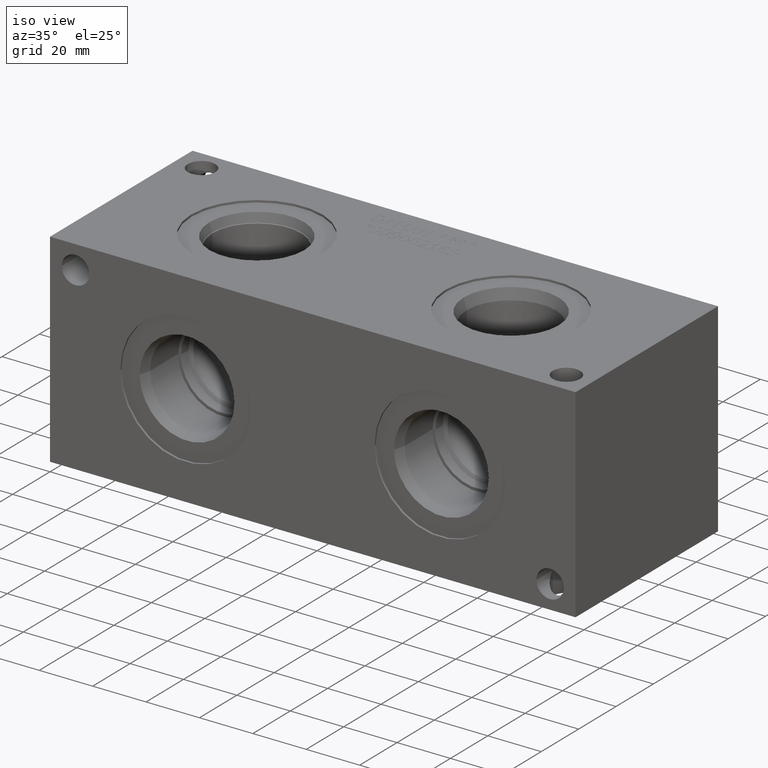
[diagram: clean part render]
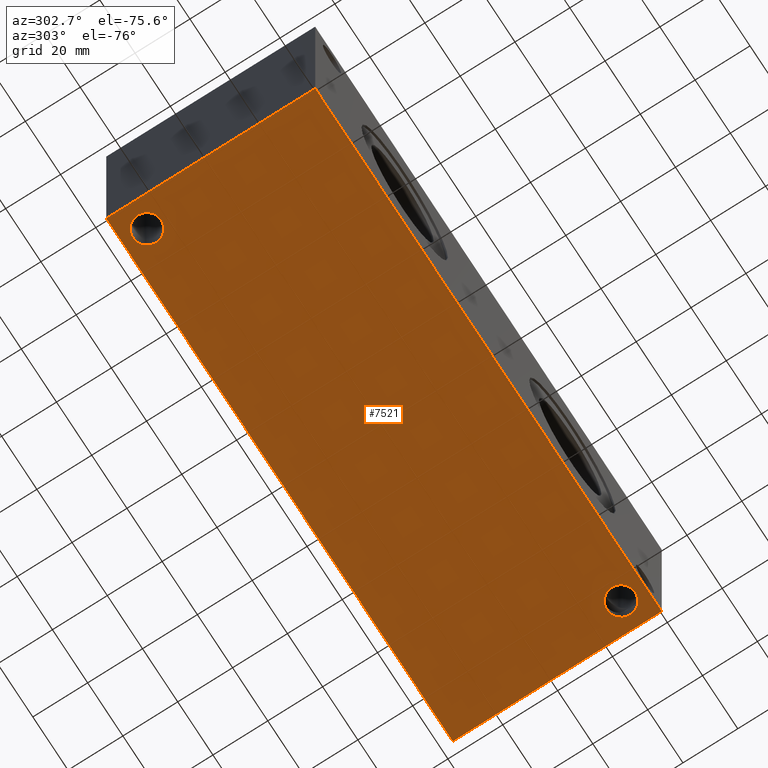
[diagram: tour spotlight — one face highlighted and labeled with its STEP entity id]
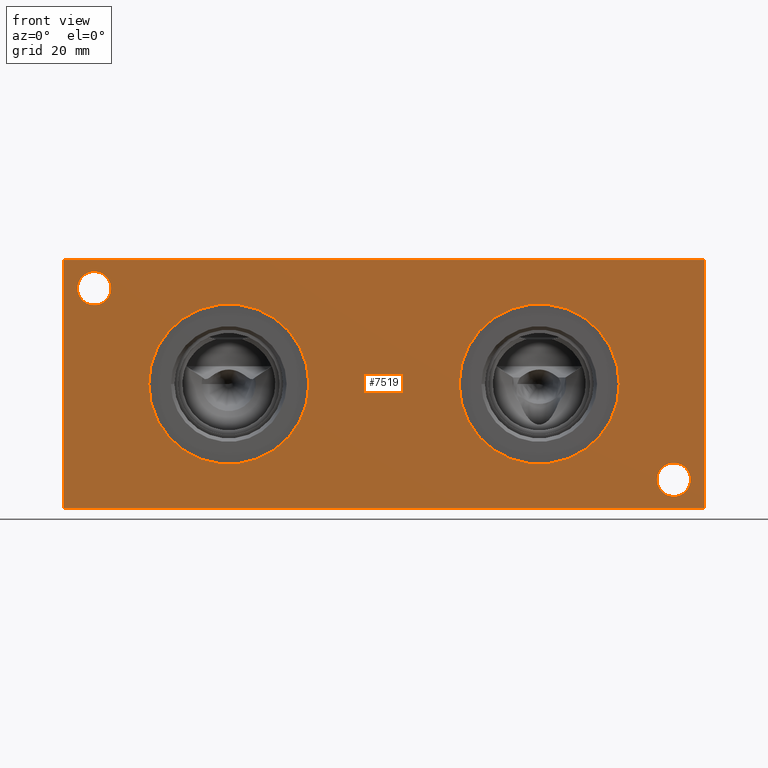
[diagram: tour spotlight — one face highlighted and labeled with its STEP entity id]
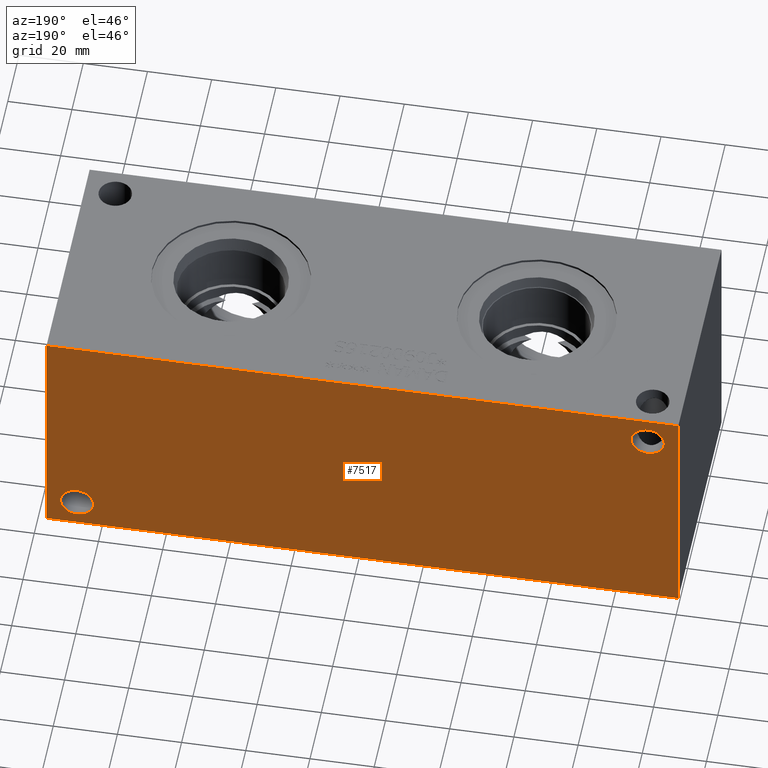
[diagram: tour spotlight — one face highlighted and labeled with its STEP entity id]
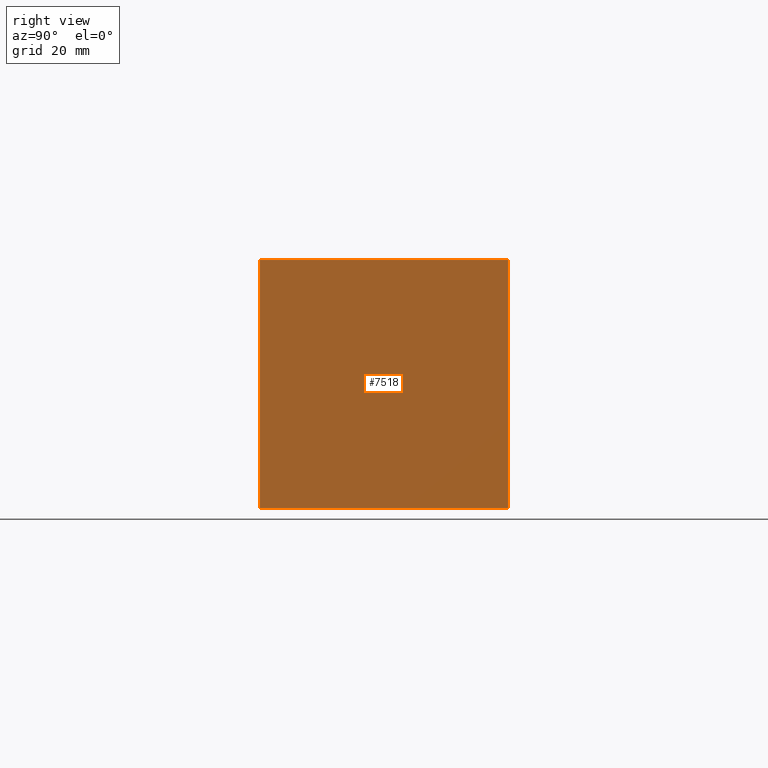
[diagram: tour spotlight — one face highlighted and labeled with its STEP entity id]
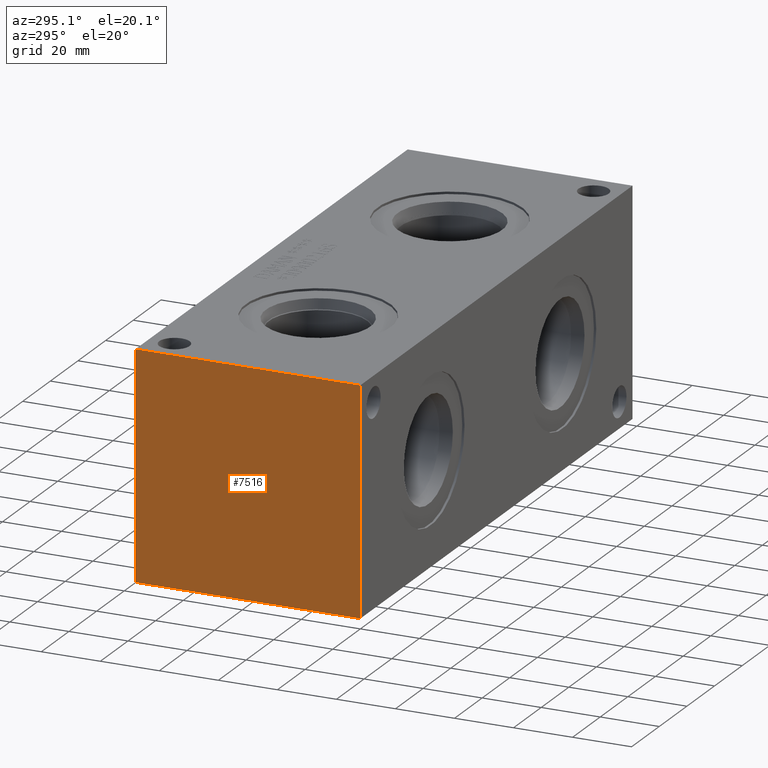
[diagram: tour spotlight — one face highlighted and labeled with its STEP entity id]
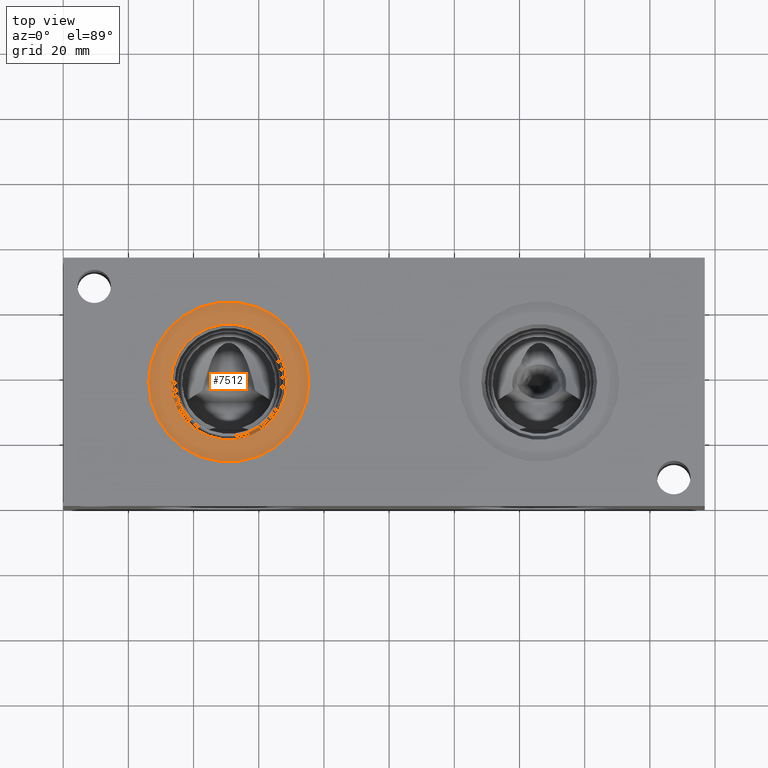
[diagram: tour spotlight — one face highlighted and labeled with its STEP entity id]
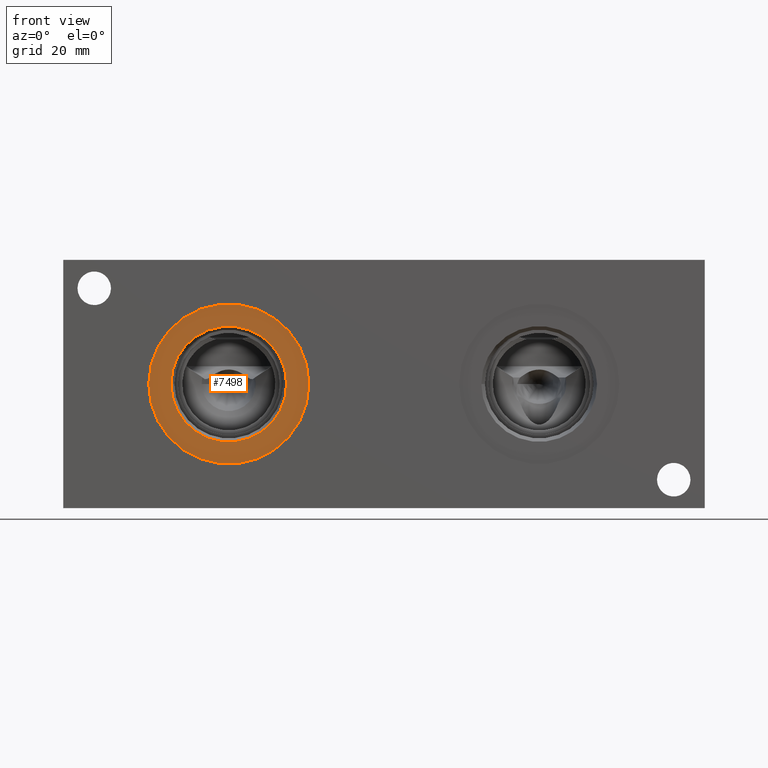
[diagram: tour spotlight — one face highlighted and labeled with its STEP entity id]
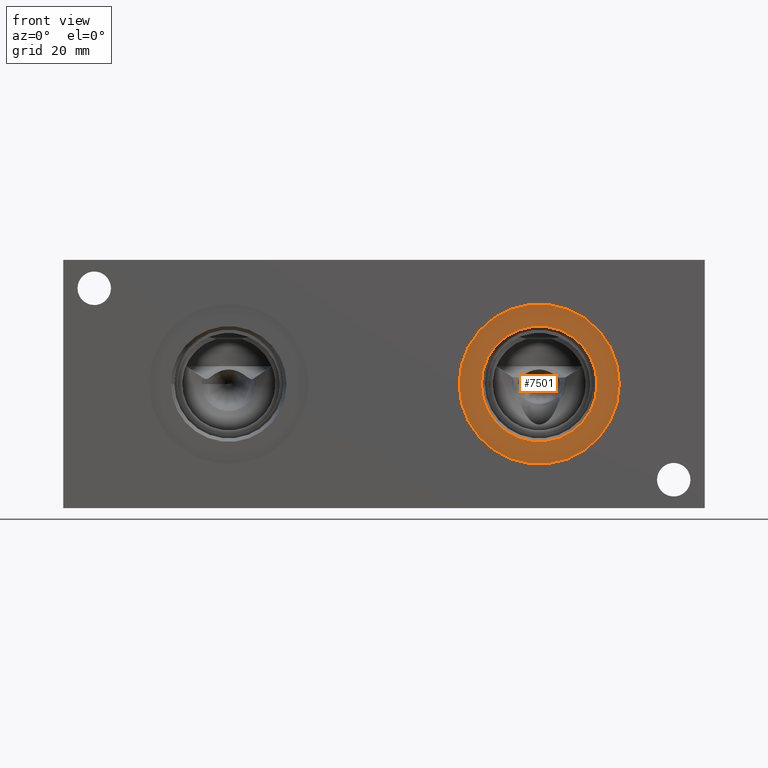
[diagram: tour spotlight — one face highlighted and labeled with its STEP entity id]
A machine part: a face-by-face anatomy tour. The part has 385 B-rep faces; the first image is the clean iso view, then the 8 largest visible faces are spotlighted one at a time (largest first), each with its STEP entity span.

Face 1 — auxiliary view, entity #7521. In plain terms, the highlighted planar face has unit normal (0, 0, 1).
Definition (entity closure, byte-faithful):
#173=CIRCLE('',#7892,5.1562);
#174=CIRCLE('',#7894,5.1562);
#232=FACE_BOUND('',#1411,.T.);
#233=FACE_BOUND('',#1412,.T.);
#980=FACE_OUTER_BOUND('',#1410,.T.);
#1410=EDGE_LOOP('',(#6611,#6612,#6613,#6614));
#1411=EDGE_LOOP('',(#6615));
#1412=EDGE_LOOP('',(#6616));
#2089=LINE('',#13109,#2773);
#2092=LINE('',#13114,#2776);
#2094=LINE('',#13118,#2778);
#2096=LINE('',#13121,#2780);
#2773=VECTOR('',#9362,10.);
#2776=VECTOR('',#9367,10.);
#2778=VECTOR('',#9371,10.);
#2780=VECTOR('',#9375,10.);
#3459=VERTEX_POINT('',#13062);
#3460=VERTEX_POINT('',#13066);
#3472=VERTEX_POINT('',#13107);
#3473=VERTEX_POINT('',#13108);
#3474=VERTEX_POINT('',#13113);
#3475=VERTEX_POINT('',#13117);
#4495=EDGE_CURVE('',#3459,#3459,#173,.T.);
#4497=EDGE_CURVE('',#3460,#3460,#174,.T.);
#4515=EDGE_CURVE('',#3472,#3473,#2089,.T.);
#4518=EDGE_CURVE('',#3474,#3472,#2092,.T.);
#4520=EDGE_CURVE('',#3475,#3474,#2094,.T.);
#4522=EDGE_CURVE('',#3473,#3475,#2096,.T.);
#6611=ORIENTED_EDGE('',*,*,#4522,.F.);
#6612=ORIENTED_EDGE('',*,*,#4515,.F.);
#6613=ORIENTED_EDGE('',*,*,#4518,.F.);
#6614=ORIENTED_EDGE('',*,*,#4520,.F.);
#6615=ORIENTED_EDGE('',*,*,#4495,.T.);
#6616=ORIENTED_EDGE('',*,*,#4497,.T.);
#6829=PLANE('',#7921);
#7521=ADVANCED_FACE('',(#980,#232,#233),#6829,.F.);
#7892=AXIS2_PLACEMENT_3D('',#13064,#9306,#9307);
#7894=AXIS2_PLACEMENT_3D('',#13068,#9311,#9312);
#7921=AXIS2_PLACEMENT_3D('',#13123,#9378,#9379);
#9306=DIRECTION('center_axis',(0.,0.,1.));
#9307=DIRECTION('ref_axis',(1.,0.,0.));
#9311=DIRECTION('center_axis',(0.,0.,1.));
#9312=DIRECTION('ref_axis',(1.,0.,0.));
#9362=DIRECTION('',(0.,-1.,0.));
#9367=DIRECTION('',(-1.,0.,0.));
#9371=DIRECTION('',(0.,1.,0.));
#9375=DIRECTION('',(1.,0.,0.));
#9378=DIRECTION('center_axis',(0.,0.,1.));
#9379=DIRECTION('ref_axis',(1.,0.,0.));
#13062=CARTESIAN_POINT('',(4.3688,67.4624,0.));
#13064=CARTESIAN_POINT('Origin',(9.525,67.4624,0.));
#13066=CARTESIAN_POINT('',(182.1688,8.7376,0.));
#13068=CARTESIAN_POINT('Origin',(187.325,8.7376,0.));
#13107=CARTESIAN_POINT('',(0.,76.2,0.));
#13108=CARTESIAN_POINT('',(0.,0.,0.));
#13109=CARTESIAN_POINT('',(0.,76.2,0.));
#13113=CARTESIAN_POINT('',(196.85,76.2,0.));
#13114=CARTESIAN_POINT('',(196.85,76.2,0.));
#13117=CARTESIAN_POINT('',(196.85,0.,0.));
#13118=CARTESIAN_POINT('',(196.85,0.,0.));
#13121=CARTESIAN_POINT('',(0.,0.,0.));
#13123=CARTESIAN_POINT('Origin',(98.425,38.1,0.));

Face 2 — front view, entity #7519. In plain terms, the highlighted planar face has unit normal (0, -1, 0).
Definition (entity closure, byte-faithful):
#127=CIRCLE('',#7802,5.1562);
#128=CIRCLE('',#7803,5.1562);
#130=CIRCLE('',#7811,5.1562);
#131=CIRCLE('',#7812,5.1562);
#165=CIRCLE('',#7878,24.5618);
#166=CIRCLE('',#7879,24.5618);
#170=CIRCLE('',#7886,24.5618);
#171=CIRCLE('',#7887,24.5618);
#228=FACE_BOUND('',#1405,.T.);
#229=FACE_BOUND('',#1406,.T.);
#230=FACE_BOUND('',#1407,.T.);
#231=FACE_BOUND('',#1408,.T.);
#978=FACE_OUTER_BOUND('',#1404,.T.);
#1404=EDGE_LOOP('',(#6596,#6597,#6598,#6599));
#1405=EDGE_LOOP('',(#6600,#6601));
#1406=EDGE_LOOP('',(#6602,#6603));
#1407=EDGE_LOOP('',(#6604,#6605));
#1408=EDGE_LOOP('',(#6606,#6607));
#1667=LINE('',#11721,#2351);
#2090=LINE('',#13110,#2774);
#2095=LINE('',#13119,#2779);
#2096=LINE('',#13121,#2780);
#2351=VECTOR('',#8298,10.);
#2774=VECTOR('',#9363,10.);
#2779=VECTOR('',#9372,10.);
#2780=VECTOR('',#9375,10.);
#3093=VERTEX_POINT('',#11719);
#3094=VERTEX_POINT('',#11720);
#3401=VERTEX_POINT('',#12817);
#3402=VERTEX_POINT('',#12818);
#3406=VERTEX_POINT('',#12833);
#3407=VERTEX_POINT('',#12834);
#3452=VERTEX_POINT('',#13037);
#3453=VERTEX_POINT('',#13038);
#3457=VERTEX_POINT('',#13052);
#3458=VERTEX_POINT('',#13053);
#3473=VERTEX_POINT('',#13108);
#3475=VERTEX_POINT('',#13117);
#3944=EDGE_CURVE('',#3093,#3094,#1667,.T.);
#4403=EDGE_CURVE('',#3401,#3402,#127,.T.);
#4404=EDGE_CURVE('',#3402,#3401,#128,.T.);
#4412=EDGE_CURVE('',#3406,#3407,#130,.T.);
#4413=EDGE_CURVE('',#3407,#3406,#131,.T.);
#4482=EDGE_CURVE('',#3452,#3453,#165,.T.);
#4483=EDGE_CURVE('',#3453,#3452,#166,.T.);
#4489=EDGE_CURVE('',#3457,#3458,#170,.T.);
#4490=EDGE_CURVE('',#3458,#3457,#171,.T.);
#4516=EDGE_CURVE('',#3473,#3093,#2090,.T.);
#4521=EDGE_CURVE('',#3475,#3094,#2095,.T.);
#4522=EDGE_CURVE('',#3473,#3475,#2096,.T.);
#6596=ORIENTED_EDGE('',*,*,#4522,.T.);
#6597=ORIENTED_EDGE('',*,*,#4521,.T.);
#6598=ORIENTED_EDGE('',*,*,#3944,.F.);
#6599=ORIENTED_EDGE('',*,*,#4516,.F.);
#6600=ORIENTED_EDGE('',*,*,#4403,.T.);
#6601=ORIENTED_EDGE('',*,*,#4404,.T.);
#6602=ORIENTED_EDGE('',*,*,#4412,.T.);
#6603=ORIENTED_EDGE('',*,*,#4413,.T.);
#6604=ORIENTED_EDGE('',*,*,#4482,.T.);
#6605=ORIENTED_EDGE('',*,*,#4483,.T.);
#6606=ORIENTED_EDGE('',*,*,#4489,.T.);
#6607=ORIENTED_EDGE('',*,*,#4490,.T.);
#6827=PLANE('',#7919);
#7519=ADVANCED_FACE('',(#978,#228,#229,#230,#231),#6827,.T.);
#7802=AXIS2_PLACEMENT_3D('',#12819,#9102,#9103);
#7803=AXIS2_PLACEMENT_3D('',#12820,#9104,#9105);
#7811=AXIS2_PLACEMENT_3D('',#12835,#9122,#9123);
#7812=AXIS2_PLACEMENT_3D('',#12836,#9124,#9125);
#7878=AXIS2_PLACEMENT_3D('',#13039,#9273,#9274);
#7879=AXIS2_PLACEMENT_3D('',#13040,#9275,#9276);
#7886=AXIS2_PLACEMENT_3D('',#13054,#9291,#9292);
#7887=AXIS2_PLACEMENT_3D('',#13055,#9293,#9294);
#7919=AXIS2_PLACEMENT_3D('',#13120,#9373,#9374);
#8298=DIRECTION('',(1.,0.,0.));
#9102=DIRECTION('center_axis',(0.,1.,0.));
#9103=DIRECTION('ref_axis',(1.,0.,0.));
#9104=DIRECTION('center_axis',(0.,1.,0.));
#9105=DIRECTION('ref_axis',(1.,0.,0.));
#9122=DIRECTION('center_axis',(0.,1.,0.));
#9123=DIRECTION('ref_axis',(1.,0.,0.));
#9124=DIRECTION('center_axis',(0.,1.,0.));
#9125=DIRECTION('ref_axis',(1.,0.,0.));
#9273=DIRECTION('center_axis',(0.,1.,0.));
#9274=DIRECTION('ref_axis',(1.,0.,0.));
#9275=DIRECTION('center_axis',(0.,1.,0.));
#9276=DIRECTION('ref_axis',(1.,0.,0.));
#9291=DIRECTION('center_axis',(0.,1.,0.));
#9292=DIRECTION('ref_axis',(1.,0.,0.));
#9293=DIRECTION('center_axis',(0.,1.,0.));
#9294=DIRECTION('ref_axis',(1.,0.,0.));
#9363=DIRECTION('',(0.,0.,1.));
#9372=DIRECTION('',(0.,0.,1.));
#9373=DIRECTION('center_axis',(0.,-1.,0.));
#9374=DIRECTION('ref_axis',(1.,0.,0.));
#9375=DIRECTION('',(1.,0.,0.));
#11719=CARTESIAN_POINT('',(0.,0.,76.2));
#11720=CARTESIAN_POINT('',(196.85,0.,76.2));
#11721=CARTESIAN_POINT('',(0.,0.,76.2));
#12817=CARTESIAN_POINT('',(14.6812,0.,67.4624));
#12818=CARTESIAN_POINT('',(4.3688,0.,67.4624));
#12819=CARTESIAN_POINT('Origin',(9.525,0.,67.4624));
#12820=CARTESIAN_POINT('Origin',(9.525,0.,67.4624));
#12833=CARTESIAN_POINT('',(192.4812,0.,8.7376));
#12834=CARTESIAN_POINT('',(182.1688,0.,8.7376));
#12835=CARTESIAN_POINT('Origin',(187.325,0.,8.7376));
#12836=CARTESIAN_POINT('Origin',(187.325,0.,8.7376));
#13037=CARTESIAN_POINT('',(75.3618,0.,38.1));
#13038=CARTESIAN_POINT('',(26.2382,0.,38.1));
#13039=CARTESIAN_POINT('Origin',(50.8,0.,38.1));
#13040=CARTESIAN_POINT('Origin',(50.8,0.,38.1));
#13052=CARTESIAN_POINT('',(170.6118,0.,38.1));
#13053=CARTESIAN_POINT('',(121.4882,0.,38.1));
#13054=CARTESIAN_POINT('Origin',(146.05,0.,38.1));
#13055=CARTESIAN_POINT('Origin',(146.05,0.,38.1));
#13108=CARTESIAN_POINT('',(0.,0.,0.));
#13110=CARTESIAN_POINT('',(0.,0.,0.));
#13117=CARTESIAN_POINT('',(196.85,0.,0.));
#13119=CARTESIAN_POINT('',(196.85,0.,0.));
#13120=CARTESIAN_POINT('Origin',(0.,0.,0.));
#13121=CARTESIAN_POINT('',(0.,0.,0.));

Face 3 — auxiliary view, entity #7517. In plain terms, the highlighted planar face has unit normal (0, 1, 0).
Definition (entity closure, byte-faithful):
#129=CIRCLE('',#7809,5.1562);
#132=CIRCLE('',#7818,5.1562);
#226=FACE_BOUND('',#1401,.T.);
#227=FACE_BOUND('',#1402,.T.);
#976=FACE_OUTER_BOUND('',#1400,.T.);
#1400=EDGE_LOOP('',(#6586,#6587,#6588,#6589));
#1401=EDGE_LOOP('',(#6590));
#1402=EDGE_LOOP('',(#6591));
#1669=LINE('',#11725,#2353);
#2091=LINE('',#13111,#2775);
#2092=LINE('',#13114,#2776);
#2093=LINE('',#13115,#2777);
#2353=VECTOR('',#8300,10.);
#2775=VECTOR('',#9364,10.);
#2776=VECTOR('',#9367,10.);
#2777=VECTOR('',#9368,10.);
#3095=VERTEX_POINT('',#11722);
#3096=VERTEX_POINT('',#11724);
#3405=VERTEX_POINT('',#12829);
#3410=VERTEX_POINT('',#12845);
#3472=VERTEX_POINT('',#13107);
#3474=VERTEX_POINT('',#13113);
#3946=EDGE_CURVE('',#3095,#3096,#1669,.T.);
#4411=EDGE_CURVE('',#3405,#3405,#129,.T.);
#4420=EDGE_CURVE('',#3410,#3410,#132,.T.);
#4517=EDGE_CURVE('',#3472,#3096,#2091,.T.);
#4518=EDGE_CURVE('',#3474,#3472,#2092,.T.);
#4519=EDGE_CURVE('',#3474,#3095,#2093,.T.);
#6586=ORIENTED_EDGE('',*,*,#4518,.T.);
#6587=ORIENTED_EDGE('',*,*,#4517,.T.);
#6588=ORIENTED_EDGE('',*,*,#3946,.F.);
#6589=ORIENTED_EDGE('',*,*,#4519,.F.);
#6590=ORIENTED_EDGE('',*,*,#4411,.T.);
#6591=ORIENTED_EDGE('',*,*,#4420,.T.);
#6825=PLANE('',#7917);
#7517=ADVANCED_FACE('',(#976,#226,#227),#6825,.T.);
#7809=AXIS2_PLACEMENT_3D('',#12831,#9118,#9119);
#7818=AXIS2_PLACEMENT_3D('',#12847,#9138,#9139);
#7917=AXIS2_PLACEMENT_3D('',#13112,#9365,#9366);
#8300=DIRECTION('',(-1.,0.,0.));
#9118=DIRECTION('center_axis',(0.,-1.,0.));
#9119=DIRECTION('ref_axis',(1.,0.,0.));
#9138=DIRECTION('center_axis',(0.,-1.,0.));
#9139=DIRECTION('ref_axis',(1.,0.,0.));
#9364=DIRECTION('',(0.,0.,1.));
#9365=DIRECTION('center_axis',(0.,1.,0.));
#9366=DIRECTION('ref_axis',(-1.,0.,0.));
#9367=DIRECTION('',(-1.,0.,0.));
#9368=DIRECTION('',(0.,0.,1.));
#11722=CARTESIAN_POINT('',(196.85,76.2,76.2));
#11724=CARTESIAN_POINT('',(0.,76.2,76.2));
#11725=CARTESIAN_POINT('',(196.85,76.2,76.2));
#12829=CARTESIAN_POINT('',(4.3688,76.2,67.4624));
#12831=CARTESIAN_POINT('Origin',(9.525,76.2,67.4624));
#12845=CARTESIAN_POINT('',(182.1688,76.2,8.7376));
#12847=CARTESIAN_POINT('Origin',(187.325,76.2,8.7376));
#13107=CARTESIAN_POINT('',(0.,76.2,0.));
#13111=CARTESIAN_POINT('',(0.,76.2,0.));
#13112=CARTESIAN_POINT('Origin',(196.85,76.2,0.));
#13113=CARTESIAN_POINT('',(196.85,76.2,0.));
#13114=CARTESIAN_POINT('',(196.85,76.2,0.));
#13115=CARTESIAN_POINT('',(196.85,76.2,0.));

Face 4 — right view, entity #7518. In plain terms, the highlighted planar face has unit normal (1, 0, 0).
Definition (entity closure, byte-faithful):
#977=FACE_OUTER_BOUND('',#1403,.T.);
#1403=EDGE_LOOP('',(#6592,#6593,#6594,#6595));
#1668=LINE('',#11723,#2352);
#2093=LINE('',#13115,#2777);
#2094=LINE('',#13118,#2778);
#2095=LINE('',#13119,#2779);
#2352=VECTOR('',#8299,10.);
#2777=VECTOR('',#9368,10.);
#2778=VECTOR('',#9371,10.);
#2779=VECTOR('',#9372,10.);
#3094=VERTEX_POINT('',#11720);
#3095=VERTEX_POINT('',#11722);
#3474=VERTEX_POINT('',#13113);
#3475=VERTEX_POINT('',#13117);
#3945=EDGE_CURVE('',#3094,#3095,#1668,.T.);
#4519=EDGE_CURVE('',#3474,#3095,#2093,.T.);
#4520=EDGE_CURVE('',#3475,#3474,#2094,.T.);
#4521=EDGE_CURVE('',#3475,#3094,#2095,.T.);
#6592=ORIENTED_EDGE('',*,*,#4520,.T.);
#6593=ORIENTED_EDGE('',*,*,#4519,.T.);
#6594=ORIENTED_EDGE('',*,*,#3945,.F.);
#6595=ORIENTED_EDGE('',*,*,#4521,.F.);
#6826=PLANE('',#7918);
#7518=ADVANCED_FACE('',(#977),#6826,.T.);
#7918=AXIS2_PLACEMENT_3D('',#13116,#9369,#9370);
#8299=DIRECTION('',(0.,1.,0.));
#9368=DIRECTION('',(0.,0.,1.));
#9369=DIRECTION('center_axis',(1.,0.,0.));
#9370=DIRECTION('ref_axis',(0.,1.,0.));
#9371=DIRECTION('',(0.,1.,0.));
#9372=DIRECTION('',(0.,0.,1.));
#11720=CARTESIAN_POINT('',(196.85,0.,76.2));
#11722=CARTESIAN_POINT('',(196.85,76.2,76.2));
#11723=CARTESIAN_POINT('',(196.85,0.,76.2));
#13113=CARTESIAN_POINT('',(196.85,76.2,0.));
#13115=CARTESIAN_POINT('',(196.85,76.2,0.));
#13116=CARTESIAN_POINT('Origin',(196.85,0.,0.));
#13117=CARTESIAN_POINT('',(196.85,0.,0.));
#13118=CARTESIAN_POINT('',(196.85,0.,0.));
#13119=CARTESIAN_POINT('',(196.85,0.,0.));

Face 5 — auxiliary view, entity #7516. In plain terms, the highlighted planar face has unit normal (-1, 0, 0).
Definition (entity closure, byte-faithful):
#975=FACE_OUTER_BOUND('',#1399,.T.);
#1399=EDGE_LOOP('',(#6582,#6583,#6584,#6585));
#1670=LINE('',#11726,#2354);
#2089=LINE('',#13109,#2773);
#2090=LINE('',#13110,#2774);
#2091=LINE('',#13111,#2775);
#2354=VECTOR('',#8301,10.);
#2773=VECTOR('',#9362,10.);
#2774=VECTOR('',#9363,10.);
#2775=VECTOR('',#9364,10.);
#3093=VERTEX_POINT('',#11719);
#3096=VERTEX_POINT('',#11724);
#3472=VERTEX_POINT('',#13107);
#3473=VERTEX_POINT('',#13108);
#3947=EDGE_CURVE('',#3096,#3093,#1670,.T.);
#4515=EDGE_CURVE('',#3472,#3473,#2089,.T.);
#4516=EDGE_CURVE('',#3473,#3093,#2090,.T.);
#4517=EDGE_CURVE('',#3472,#3096,#2091,.T.);
#6582=ORIENTED_EDGE('',*,*,#4515,.T.);
#6583=ORIENTED_EDGE('',*,*,#4516,.T.);
#6584=ORIENTED_EDGE('',*,*,#3947,.F.);
#6585=ORIENTED_EDGE('',*,*,#4517,.F.);
#6824=PLANE('',#7916);
#7516=ADVANCED_FACE('',(#975),#6824,.T.);
#7916=AXIS2_PLACEMENT_3D('',#13106,#9360,#9361);
#8301=DIRECTION('',(0.,-1.,0.));
#9360=DIRECTION('center_axis',(-1.,0.,0.));
#9361=DIRECTION('ref_axis',(0.,-1.,0.));
#9362=DIRECTION('',(0.,-1.,0.));
#9363=DIRECTION('',(0.,0.,1.));
#9364=DIRECTION('',(0.,0.,1.));
#11719=CARTESIAN_POINT('',(0.,0.,76.2));
#11724=CARTESIAN_POINT('',(0.,76.2,76.2));
#11726=CARTESIAN_POINT('',(0.,76.2,76.2));
#13106=CARTESIAN_POINT('Origin',(0.,76.2,0.));
#13107=CARTESIAN_POINT('',(0.,76.2,0.));
#13108=CARTESIAN_POINT('',(0.,0.,0.));
#13109=CARTESIAN_POINT('',(0.,76.2,0.));
#13110=CARTESIAN_POINT('',(0.,0.,0.));
#13111=CARTESIAN_POINT('',(0.,76.2,0.));

Face 6 — top view, entity #7512. In plain terms, the highlighted planar face has unit normal (0, 0, -1).
Definition (entity closure, byte-faithful):
#179=CIRCLE('',#7904,24.5618);
#180=CIRCLE('',#7905,24.5618);
#181=CIRCLE('',#7907,17.7546);
#182=CIRCLE('',#7908,17.7546);
#225=FACE_BOUND('',#1395,.T.);
#971=FACE_OUTER_BOUND('',#1394,.T.);
#1394=EDGE_LOOP('',(#6561,#6562));
#1395=EDGE_LOOP('',(#6563,#6564));
#3464=VERTEX_POINT('',#13082);
#3465=VERTEX_POINT('',#13084);
#3466=VERTEX_POINT('',#13088);
#3467=VERTEX_POINT('',#13089);
#4504=EDGE_CURVE('',#3464,#3465,#179,.T.);
#4505=EDGE_CURVE('',#3465,#3464,#180,.T.);
#4506=EDGE_CURVE('',#3466,#3467,#181,.T.);
#4507=EDGE_CURVE('',#3467,#3466,#182,.T.);
#6561=ORIENTED_EDGE('',*,*,#4505,.F.);
#6562=ORIENTED_EDGE('',*,*,#4504,.F.);
#6563=ORIENTED_EDGE('',*,*,#4506,.T.);
#6564=ORIENTED_EDGE('',*,*,#4507,.T.);
#6823=PLANE('',#7906);
#7512=ADVANCED_FACE('',(#971,#225),#6823,.F.);
#7904=AXIS2_PLACEMENT_3D('',#13085,#9333,#9334);
#7905=AXIS2_PLACEMENT_3D('',#13086,#9335,#9336);
#7906=AXIS2_PLACEMENT_3D('',#13087,#9337,#9338);
#7907=AXIS2_PLACEMENT_3D('',#13090,#9339,#9340);
#7908=AXIS2_PLACEMENT_3D('',#13091,#9341,#9342);
#9333=DIRECTION('center_axis',(0.,0.,-1.));
#9334=DIRECTION('ref_axis',(1.,0.,0.));
#9335=DIRECTION('center_axis',(0.,0.,-1.));
#9336=DIRECTION('ref_axis',(1.,0.,0.));
#9337=DIRECTION('center_axis',(0.,0.,-1.));
#9338=DIRECTION('ref_axis',(-1.,0.,0.));
#9339=DIRECTION('center_axis',(0.,0.,-1.));
#9340=DIRECTION('ref_axis',(1.,0.,0.));
#9341=DIRECTION('center_axis',(0.,0.,-1.));
#9342=DIRECTION('ref_axis',(1.,0.,0.));
#13082=CARTESIAN_POINT('',(26.2382,38.1,75.4126));
#13084=CARTESIAN_POINT('',(75.3618,38.1,75.4126));
#13085=CARTESIAN_POINT('Origin',(50.8,38.1,75.4126));
#13086=CARTESIAN_POINT('Origin',(50.8,38.1,75.4126));
#13087=CARTESIAN_POINT('Origin',(68.5546,38.1,75.4126));
#13088=CARTESIAN_POINT('',(68.5546,38.1,75.4126));
#13089=CARTESIAN_POINT('',(33.0454,38.1,75.4126));
#13090=CARTESIAN_POINT('Origin',(50.8,38.1,75.4126));
#13091=CARTESIAN_POINT('Origin',(50.8,38.1,75.4126));

Face 7 — front view, entity #7498. In plain terms, the highlighted planar face has unit normal (0, -1, 0).
Definition (entity closure, byte-faithful):
#162=CIRCLE('',#7874,24.5618);
#163=CIRCLE('',#7875,24.5618);
#164=CIRCLE('',#7876,17.7546);
#222=FACE_BOUND('',#1378,.T.);
#957=FACE_OUTER_BOUND('',#1377,.T.);
#1377=EDGE_LOOP('',(#6492,#6493));
#1378=EDGE_LOOP('',(#6494));
#3449=VERTEX_POINT('',#13030);
#3450=VERTEX_POINT('',#13031);
#3451=VERTEX_POINT('',#13034);
#4479=EDGE_CURVE('',#3449,#3450,#162,.T.);
#4480=EDGE_CURVE('',#3450,#3449,#163,.T.);
#4481=EDGE_CURVE('',#3451,#3451,#164,.T.);
#6492=ORIENTED_EDGE('',*,*,#4479,.T.);
#6493=ORIENTED_EDGE('',*,*,#4480,.T.);
#6494=ORIENTED_EDGE('',*,*,#4481,.F.);
#6820=PLANE('',#7873);
#7498=ADVANCED_FACE('',(#957,#222),#6820,.T.);
#7873=AXIS2_PLACEMENT_3D('',#13029,#9263,#9264);
#7874=AXIS2_PLACEMENT_3D('',#13032,#9265,#9266);
#7875=AXIS2_PLACEMENT_3D('',#13033,#9267,#9268);
#7876=AXIS2_PLACEMENT_3D('',#13035,#9269,#9270);
#9263=DIRECTION('center_axis',(0.,-1.,0.));
#9264=DIRECTION('ref_axis',(1.,0.,0.));
#9265=DIRECTION('center_axis',(0.,-1.,0.));
#9266=DIRECTION('ref_axis',(1.,0.,0.));
#9267=DIRECTION('center_axis',(0.,-1.,0.));
#9268=DIRECTION('ref_axis',(1.,0.,0.));
#9269=DIRECTION('center_axis',(0.,-1.,0.));
#9270=DIRECTION('ref_axis',(1.,0.,0.));
#13029=CARTESIAN_POINT('Origin',(50.8,0.7874,38.1));
#13030=CARTESIAN_POINT('',(75.3618,0.7874,38.1));
#13031=CARTESIAN_POINT('',(26.2382,0.7874,38.1));
#13032=CARTESIAN_POINT('Origin',(50.8,0.7874,38.1));
#13033=CARTESIAN_POINT('Origin',(50.8,0.7874,38.1));
#13034=CARTESIAN_POINT('',(33.0454,0.7874,38.1));
#13035=CARTESIAN_POINT('Origin',(50.8,0.7874,38.1));

Face 8 — front view, entity #7501. In plain terms, the highlighted planar face has unit normal (0, -1, 0).
Definition (entity closure, byte-faithful):
#167=CIRCLE('',#7882,24.5618);
#168=CIRCLE('',#7883,24.5618);
#169=CIRCLE('',#7884,17.7546);
#223=FACE_BOUND('',#1382,.T.);
#960=FACE_OUTER_BOUND('',#1381,.T.);
#1381=EDGE_LOOP('',(#6506,#6507));
#1382=EDGE_LOOP('',(#6508));
#3454=VERTEX_POINT('',#13045);
#3455=VERTEX_POINT('',#13046);
#3456=VERTEX_POINT('',#13049);
#4486=EDGE_CURVE('',#3454,#3455,#167,.T.);
#4487=EDGE_CURVE('',#3455,#3454,#168,.T.);
#4488=EDGE_CURVE('',#3456,#3456,#169,.T.);
#6506=ORIENTED_EDGE('',*,*,#4486,.T.);
#6507=ORIENTED_EDGE('',*,*,#4487,.T.);
#6508=ORIENTED_EDGE('',*,*,#4488,.F.);
#6821=PLANE('',#7881);
#7501=ADVANCED_FACE('',(#960,#223),#6821,.T.);
#7881=AXIS2_PLACEMENT_3D('',#13044,#9281,#9282);
#7882=AXIS2_PLACEMENT_3D('',#13047,#9283,#9284);
#7883=AXIS2_PLACEMENT_3D('',#13048,#9285,#9286);
#7884=AXIS2_PLACEMENT_3D('',#13050,#9287,#9288);
#9281=DIRECTION('center_axis',(0.,-1.,0.));
#9282=DIRECTION('ref_axis',(1.,0.,0.));
#9283=DIRECTION('center_axis',(0.,-1.,0.));
#9284=DIRECTION('ref_axis',(1.,0.,0.));
#9285=DIRECTION('center_axis',(0.,-1.,0.));
#9286=DIRECTION('ref_axis',(1.,0.,0.));
#9287=DIRECTION('center_axis',(0.,-1.,0.));
#9288=DIRECTION('ref_axis',(1.,0.,0.));
#13044=CARTESIAN_POINT('Origin',(146.05,0.7874,38.1));
#13045=CARTESIAN_POINT('',(170.6118,0.7874,38.1));
#13046=CARTESIAN_POINT('',(121.4882,0.7874,38.1));
#13047=CARTESIAN_POINT('Origin',(146.05,0.7874,38.1));
#13048=CARTESIAN_POINT('Origin',(146.05,0.7874,38.1));
#13049=CARTESIAN_POINT('',(128.2954,0.7874,38.1));
#13050=CARTESIAN_POINT('Origin',(146.05,0.7874,38.1));